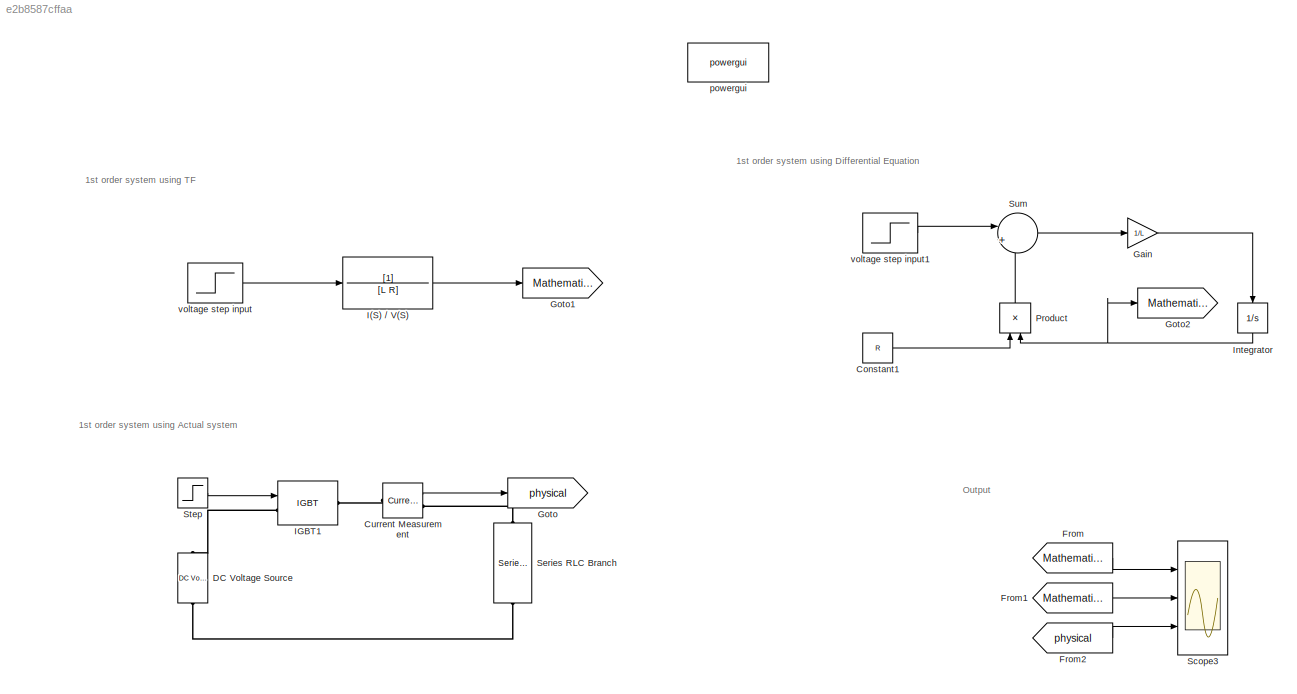
MODEL slx_e2b8587cffaa
KIND model
CONFIG AbsTol = auto
CONFIG EnableMultiTasking = off
CONFIG FixedStep = auto
CONFIG InitFcn = V=220;\nL=100;\nR=22;
CONFIG MaxStep = auto
CONFIG MinStep = auto
CONFIG RelTol = 1e-3
CONFIG SampleTimeConstraint = Unconstrained
CONFIG SolverName = VariableStepAuto
CONFIG StartTime = 0.0
CONFIG StopTime = 10.0
BLOCK [Constant] Constant1
  Value = R
BLOCK [Reference] Current Measurement  REF=spsCurrentMeasurementLib/Current Measurement
  Ports = [0, 1, 0, 0, 0, 1, 1]
  SourceBlock = spsCurrentMeasurementLib/Current Measurement
  SourceProductBaseCode = PS
  SourceType = Current Measurement
  UserDataPersistent = on
BLOCK [Reference] DC Voltage Source  REF=spsDCVoltageSourceLib/DC Voltage Source
  NameLocation = right
  Ports = [0, 0, 0, 0, 0, 1, 1]
  SourceBlock = spsDCVoltageSourceLib/DC Voltage Source
  SourceProductBaseCode = PS
  SourceType = DC Voltage Source
BLOCK [From] From
  GotoTag = Mathematical
BLOCK [From] From1
  GotoTag = Mathematical2
BLOCK [From] From2
  GotoTag = physical
BLOCK [Gain] Gain
  Gain = 1/L
BLOCK [Goto] Goto
  GotoTag = physical
BLOCK [Goto] Goto1
  GotoTag = Mathematical
BLOCK [Goto] Goto2
  GotoTag = Mathematical2
BLOCK [TransferFcn] I(S) // V(S)
  Denominator = [L R]
BLOCK [Reference] IGBT1  REF=spsIGBTLib/IGBT
  Ports = [1, 0, 0, 0, 0, 1, 1]
  SourceBlock = spsIGBTLib/IGBT
  SourceProductBaseCode = PS
  SourceType = IGBT
BLOCK [Integrator] Integrator
  NameLocation = left
  Ports = [1, 1]
BLOCK [Product] Product
  NameLocation = right
  Ports = [2, 1]
BLOCK [Scope] Scope3
  Floating = off
  NumInputPorts = 3
  Ports = [3]
  ScopeSpecificationString = Simulink.scopes.TimeScopeBlockCfg('CurrentConfiguration', extmgr.ConfigurationSet(extmgr.Configuration('Core','General UI',true),extmgr.Configuration('Core','Source UI',true),extmgr.Configuration('Sources','WiredSimulink',true,'DataLoggingVariableName','ScopeData1'),extmgr.Configuration('Visuals','Time Domain',true,'SerializedDisplays',{struct('MinYLimReal','-1.07744','MaxYLimReal','9.69696','YLab...<+2760ch>
BLOCK [Reference] Series RLC Branch  REF=spsSeriesRLCBranchLib/Series RLC Branch
  NameLocation = right
  Ports = [0, 0, 0, 0, 0, 1, 1]
  SourceBlock = spsSeriesRLCBranchLib/Series RLC Branch
  SourceProductBaseCode = PS
  SourceType = Series RLC Branch
BLOCK [Step] Step
  SampleTime = 0
BLOCK [Sum] Sum
  Inputs = |+-
  Ports = [2, 1]
BLOCK [Reference] powergui  REF=spspowerguiLib/powergui
  Ports = []
  Priority = 1
  SourceBlock = spspowerguiLib/powergui
  SourceProductBaseCode = PS
  SourceType = PSB option menu block
BLOCK [Step] voltage step input
  After = V
  SampleTime = 0
BLOCK [Step] voltage step input1
  After = V
  SampleTime = 0
ANNOTATION (root): Output
ANNOTATION (root): 1st order system using TF
ANNOTATION (root): 1st order system using Differential Equation
ANNOTATION (root): 1st order system using Actual system
LINE Constant1:1 -> Product:1
LINE Current Measurement:1 -> Goto:1
LINE From1:1 -> Scope3:2
LINE From2:1 -> Scope3:3
LINE From:1 -> Scope3:1
LINE Gain:1 -> Integrator:1
LINE I(S) // V(S):1 -> Goto1:1
NET Integrator:1 -> Goto2:1, Product:2
LINE Product:1 -> Sum:2
LINE Step:1 -> IGBT1:1
LINE Sum:1 -> Gain:1
LINE voltage step input1:1 -> Sum:1
LINE voltage step input:1 -> I(S) // V(S):1
PLINE Current Measurement:LConn1 -- IGBT1:RConn1
PLINE Current Measurement:RConn1 -- Series RLC Branch:RConn1
PLINE DC Voltage Source:LConn1 -- Series RLC Branch:LConn1
PLINE DC Voltage Source:RConn1 -- IGBT1:LConn1
note: NET lines group one-source signal fan-out (src -> all destinations, sorted); 1:1 wires keep LINE
